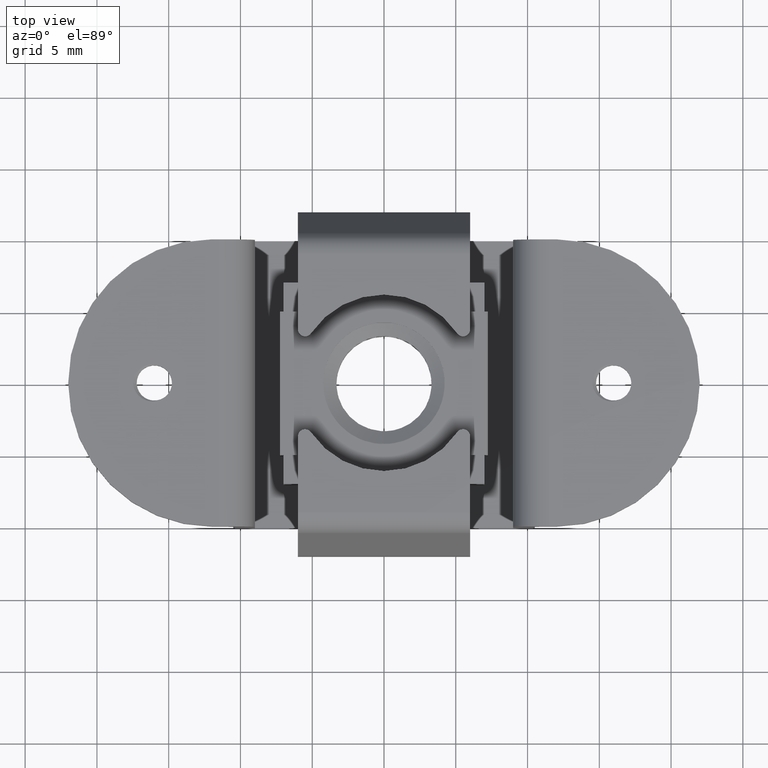
[diagram: clean part render]
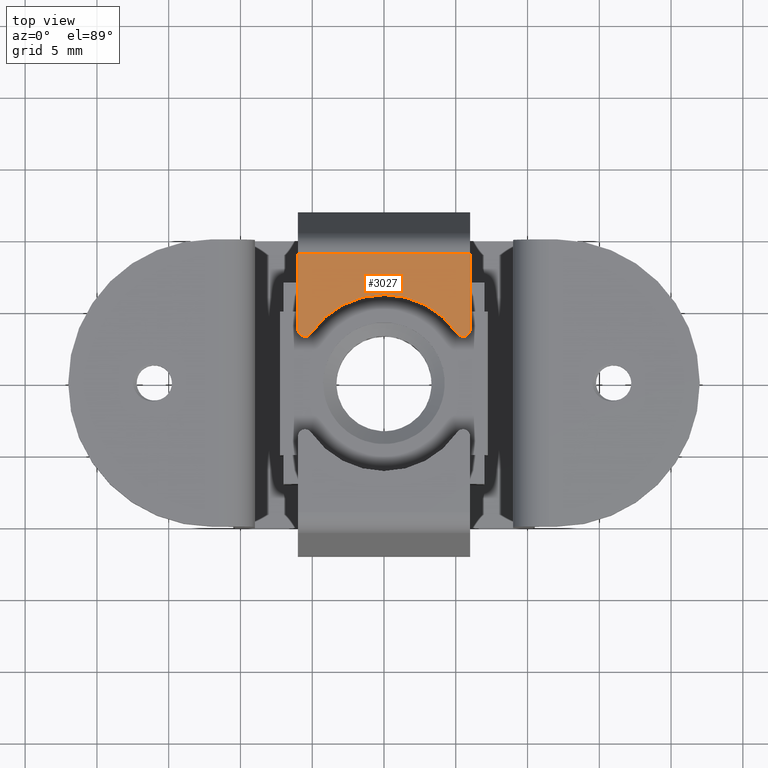
[diagram: same view with one face highlighted and labeled with its STEP entity id]
A machine part, top view. The second image highlights one B-rep face of the part: STEP entity #3027.
In plain terms, the highlighted planar face has unit normal (0, 0, 1).
Its self-contained STEP definition (entity closure, byte-faithful):
#34 = CARTESIAN_POINT ( 'NONE',  ( 5.086466165413439100, 3.456929554981710100, 9.199999999992771300 ) ) ;
#551 = LINE ( 'NONE', #3719, #1793 ) ;
#841 = EDGE_LOOP ( 'NONE', ( #5742, #6139, #2745, #6136, #2561, #2505 ) ) ;
#980 = DIRECTION ( 'NONE',  ( 4.201593771026950100E-016, -6.182152172103620200E-016, 1.000000000000000000 ) ) ;
#981 = EDGE_CURVE ( 'NONE', #5213, #1398, #6421, .T. ) ;
#1127 = LINE ( 'NONE', #1985, #2703 ) ;
#1256 = DIRECTION ( 'NONE',  ( 1.000000000000000000, 0.0000000000000000000, 0.0000000000000000000 ) ) ;
#1385 = EDGE_CURVE ( 'NONE', #5213, #5801, #1974, .T. ) ;
#1398 = VERTEX_POINT ( 'NONE', #4005 ) ;
#1523 = DIRECTION ( 'NONE',  ( 0.0000000000000000000, 0.0000000000000000000, 1.000000000000000000 ) ) ;
#1616 = DIRECTION ( 'NONE',  ( -1.000000000000000000, 0.0000000000000000000, 0.0000000000000000000 ) ) ;
#1773 = PLANE ( 'NONE',  #6058 ) ;
#1793 = VECTOR ( 'NONE', #1616, 1000.000000000000000 ) ;
#1803 = VERTEX_POINT ( 'NONE', #4209 ) ;
#1879 = CIRCLE ( 'NONE', #3081, 0.4999999999999997800 ) ;
#1943 = CARTESIAN_POINT ( 'NONE',  ( 5.999999999999889900, 9.000000000006988200, 9.199999999988991200 ) ) ;
#1974 = LINE ( 'NONE', #2415, #4609 ) ;
#1985 = CARTESIAN_POINT ( 'NONE',  ( 5.999999999999889900, 3.737980738313549700, 9.199999999988991200 ) ) ;
#2345 = EDGE_CURVE ( 'NONE', #4171, #1398, #2719, .T. ) ;
#2415 = CARTESIAN_POINT ( 'NONE',  ( -6.000000000000000000, 3.737980738312879600, 9.199999999988991200 ) ) ;
#2505 = ORIENTED_EDGE ( 'NONE', *, *, #2828, .T. ) ;
#2561 = ORIENTED_EDGE ( 'NONE', *, *, #6712, .T. ) ;
#2703 = VECTOR ( 'NONE', #5674, 1000.000000000000000 ) ;
#2719 = CIRCLE ( 'NONE', #5748, 6.149999999999996800 ) ;
#2745 = ORIENTED_EDGE ( 'NONE', *, *, #2345, .F. ) ;
#2828 = EDGE_CURVE ( 'NONE', #6481, #5801, #551, .T. ) ;
#2954 = CARTESIAN_POINT ( 'NONE',  ( -5.500000000000000000, 3.737980738312889800, 9.199999999992771300 ) ) ;
#3006 = CARTESIAN_POINT ( 'NONE',  ( -6.000000000000000000, 9.000000000006988200, 9.199999999988991200 ) ) ;
#3027 = ADVANCED_FACE ( 'NONE', ( #5280 ), #1773, .T. ) ;
#3081 = AXIS2_PLACEMENT_3D ( 'NONE', #4140, #980, #4665 ) ;
#3487 = DIRECTION ( 'NONE',  ( -1.000000000000000000, -1.647987302177965200E-014, 0.0000000000000000000 ) ) ;
#3719 = CARTESIAN_POINT ( 'NONE',  ( 5.999999999999889900, 9.000000000006988200, 9.199999999988991200 ) ) ;
#3902 = CARTESIAN_POINT ( 'NONE',  ( -7.200000000000000200, 2.372534871768149600, 9.199999999988991200 ) ) ;
#4005 = CARTESIAN_POINT ( 'NONE',  ( -5.086466165413519900, 3.456929554981090100, 9.199999999992771300 ) ) ;
#4032 = EDGE_CURVE ( 'NONE', #4171, #1803, #1879, .T. ) ;
#4140 = CARTESIAN_POINT ( 'NONE',  ( 5.499999999999889900, 3.737980738313564800, 9.199999999992771300 ) ) ;
#4171 = VERTEX_POINT ( 'NONE', #34 ) ;
#4209 = CARTESIAN_POINT ( 'NONE',  ( 5.999999999999889900, 3.737980738313549700, 9.199999999988991200 ) ) ;
#4413 = DIRECTION ( 'NONE',  ( 0.0000000000000000000, 0.0000000000000000000, 1.000000000000000000 ) ) ;
#4530 = DIRECTION ( 'NONE',  ( 0.0000000000000000000, 1.000000000000000000, 0.0000000000000000000 ) ) ;
#4559 = AXIS2_PLACEMENT_3D ( 'NONE', #2954, #6620, #3487 ) ;
#4609 = VECTOR ( 'NONE', #4530, 1000.000000000000000 ) ;
#4665 = DIRECTION ( 'NONE',  ( -0.8270676691728848800, -0.5621023666636988400, 0.0000000000000000000 ) ) ;
#4676 = CARTESIAN_POINT ( 'NONE',  ( 1.707006701923264700E-013, 2.664535259100374500E-015, 9.199999999992771300 ) ) ;
#5213 = VERTEX_POINT ( 'NONE', #5561 ) ;
#5214 = DIRECTION ( 'NONE',  ( 0.8270676691728894300, 0.5621023666636922900, 0.0000000000000000000 ) ) ;
#5280 = FACE_OUTER_BOUND ( 'NONE', #841, .T. ) ;
#5561 = CARTESIAN_POINT ( 'NONE',  ( -6.000000000000000000, 3.737980738312879600, 9.199999999988991200 ) ) ;
#5674 = DIRECTION ( 'NONE',  ( 0.0000000000000000000, 1.000000000000000000, 0.0000000000000000000 ) ) ;
#5742 = ORIENTED_EDGE ( 'NONE', *, *, #1385, .F. ) ;
#5748 = AXIS2_PLACEMENT_3D ( 'NONE', #4676, #1523, #5214 ) ;
#5801 = VERTEX_POINT ( 'NONE', #3006 ) ;
#6058 = AXIS2_PLACEMENT_3D ( 'NONE', #3902, #4413, #1256 ) ;
#6136 = ORIENTED_EDGE ( 'NONE', *, *, #4032, .T. ) ;
#6139 = ORIENTED_EDGE ( 'NONE', *, *, #981, .T. ) ;
#6421 = CIRCLE ( 'NONE', #4559, 0.5000000000000004400 ) ;
#6481 = VERTEX_POINT ( 'NONE', #1943 ) ;
#6620 = DIRECTION ( 'NONE',  ( -1.261398948033554000E-029, 7.474783989907199800E-016, 1.000000000000000000 ) ) ;
#6712 = EDGE_CURVE ( 'NONE', #1803, #6481, #1127, .T. ) ;